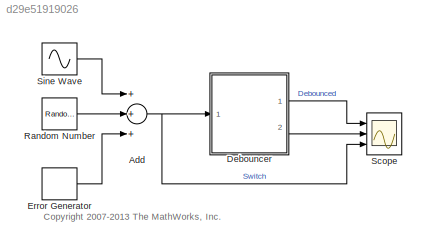
MODEL slx_d29e51919026
KIND model
CONFIG AbsTol = auto
CONFIG EnableMultiTasking = on
CONFIG FixedStep = auto
CONFIG MaxStep = auto
CONFIG MinStep = auto
CONFIG RelTol = 1e-3
CONFIG SampleTimeConstraint = Unconstrained
CONFIG Solver = VariableStepDiscrete
CONFIG SolverName = VariableStepDiscrete
CONFIG StartTime = 0.0
CONFIG StopTime = 6
BLOCK [Sum] Add
  InputSameDT = off
  Inputs = +++
  OutDataTypeStr = Inherit: Inherit via internal rule
  Ports = [3, 1]
  SaturateOnIntegerOverflow = off
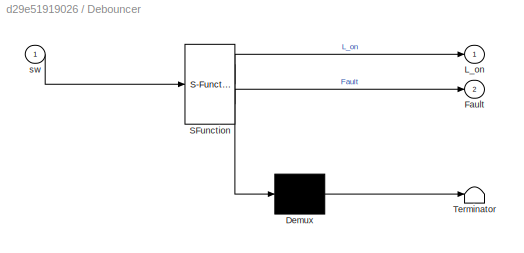
BLOCK [SubSystem] Debouncer
  ErrorFcn = Stateflow.Translate.translate
  PermitHierarchicalResolution = ExplicitOnly
  Ports = [1, 2]
  RequestExecContextInheritance = off
  SFBlockType = Chart
  TreatAsAtomicUnit = on
  Variant = off
BLOCK [Demux] Debouncer/ Demux 
  Outputs = 1
  Ports = [1, 1]
BLOCK [Outport] Debouncer/ Fault
  IconDisplay = Port number
  Port = 2
BLOCK [S-Function] Debouncer/ SFunction 
  EnableBusSupport = off
  FunctionName = sf_sfun
  PortCounts = [1 3]
  Ports = [1, 3]
  SFcnIsStateOwnerBlock = off
  SFunctionDeploymentMode = off
  Tag = Stateflow S-Function sf_debouncer 17
BLOCK [Terminator] Debouncer/ Terminator 
BLOCK [Outport] Debouncer/L_on
  IconDisplay = Port number
BLOCK [Inport] Debouncer/sw
  IconDisplay = Port number
BLOCK [DiscretePulseGenerator] Error Generator
  Amplitude = 10
  Period = 0.001
  PhaseDelay = 2
  Ports = [0, 1]
  PulseType = Time based
  PulseWidth = 50
BLOCK [RandomNumber] Random Number
  SampleTime = 0
  Variance = 30
BLOCK [Scope] Scope
  NumInputPorts = 3
  Ports = [3]
  ScopeSpecificationString = Simulink.scopes.TimeScopeBlockCfg('CurrentConfiguration', extmgr.ConfigurationSet(extmgr.Configuration('Core','General UI',true),extmgr.Configuration('Core','Source UI',true),extmgr.Configuration('Sources','WiredSimulink',true,'DataLoggingSaveFormat','StructureWithTime','DataLoggingMaxPoints','10000','DataLoggingLimitDataPoints',true,'DataLoggingDecimation','1'),extmgr.Configuration('Visuals','Tim...<+3146ch>
BLOCK [Sin] Sine Wave
  Amplitude = 20
  Frequency = 10
  Ports = [0, 1]
  SampleTime = 0
ANNOTATION (root): <copyright redacted>
NET Add:1 -> Debouncer:1, Scope:3
LINE Debouncer:1 -> Scope:1
LINE Debouncer:2 -> Scope:2
LINE Error Generator:1 -> Add:3
LINE Random Number:1 -> Add:2
LINE Sine Wave:1 -> Add:1
note: NET lines group one-source signal fan-out (src -> all destinations, sorted); 1:1 wires keep LINE
CHART Debouncer states=7 transitions=10
  STATE_LABEL 'Off\nen: L_on = 0;'
  STATE_LABEL 'Fault\n% Isolation'
  STATE_LABEL 'Normal'
  STATE_LABEL '% Recovery\nafter(1, sec)'
  STATE_LABEL 'Fault\n% Isolation'
  STATE_LABEL 'Normal'
  STATE_LABEL 'Debounce'
  STATE_LABEL 'Off'
  STATE_LABEL 'On'
  STATE_LABEL '[sw > 0]'
  STATE_LABEL '[sw < 0]'
  STATE_LABEL 'Off'
  STATE_LABEL 'On'
  STATE_LABEL 'On\nen: L_on = 1;'
